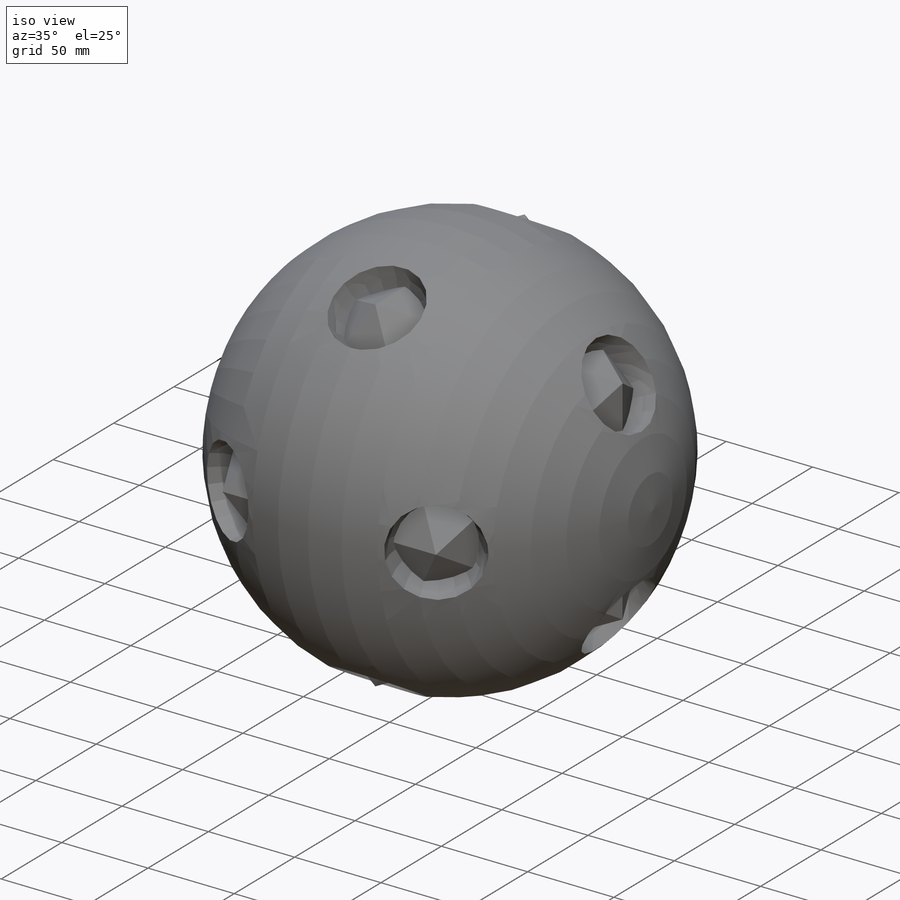
[diagram: iso view]
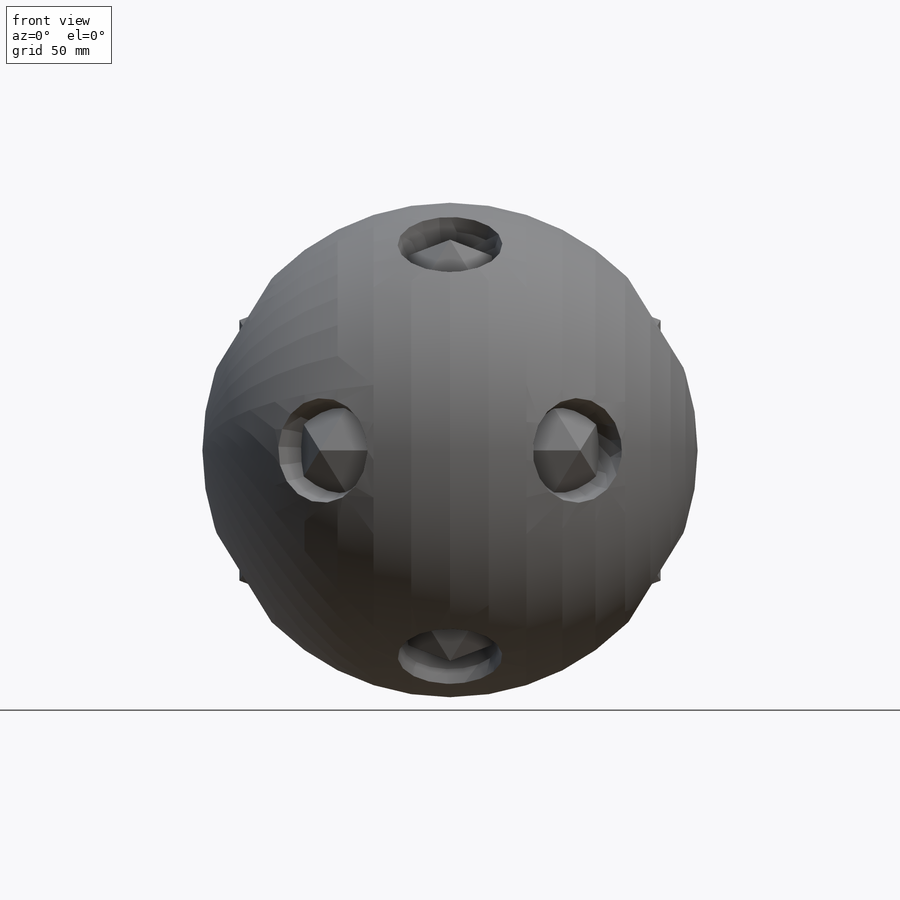
[diagram: front view]
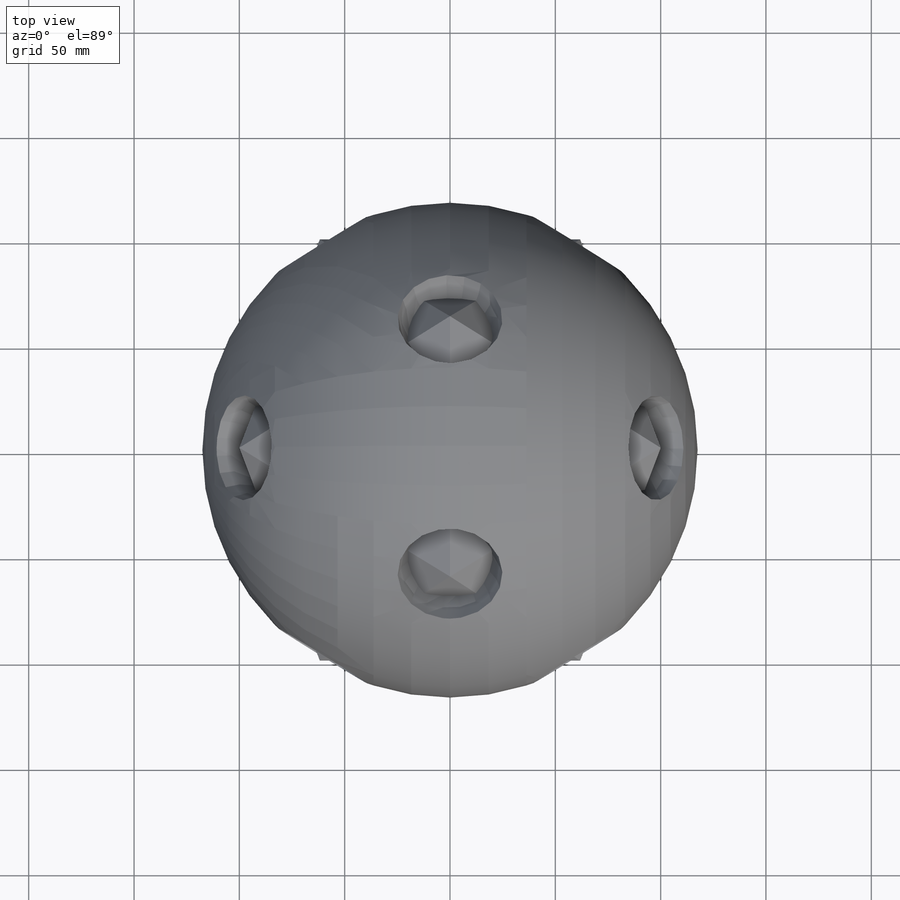
[diagram: top view]
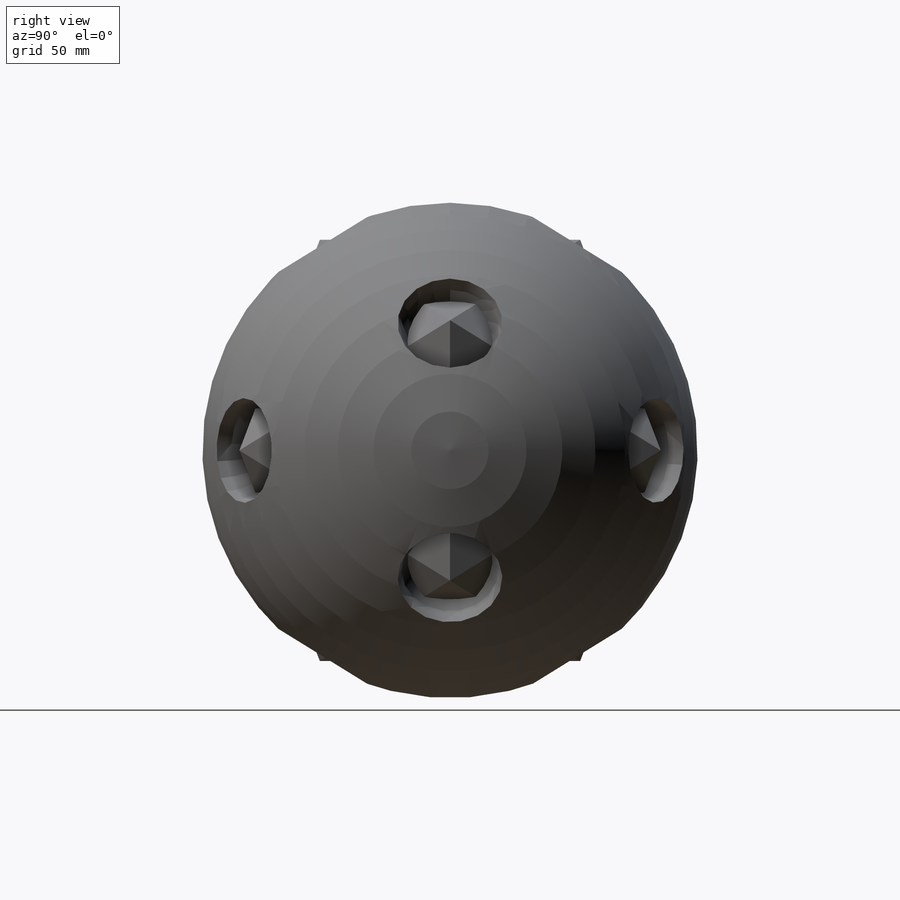
[diagram: right view]
SOLIDWORKS PART (.sldprt)
format: sldprt  version: not decoded by parser v0  size: 428,544 bytes
history: native  units: mm
features: sketch x11, mirror x9, plane x4, revolve x4, cut_extrude x3, pattern_circular x2, material x1, extrude x1, sweep x1, cut_revolve x1 (+8 scaffold rows collapsed)
feature tree (45):
  scaffold x8  (default folders/planes/origin — collapsed)
  material  "Material <nicht festgelegt>"
  plane  "Vorne"
  plane  "Oben"
  plane  "Rechts"
  sketch  "Skizze1"  dims[D1=200.0mm]
  extrude  "Linear austragen1"  Depth=200mm
  sketch  "Skizze2"
  sketch  "Skizze3"
  sketch  "Skizze6"
  sketch  "Skizze4"
  cut_extrude  "Schnitt-Linear austragen1"  [1 undecoded]
  mirror  "Spiegeln1"
  mirror  "Spiegeln2"
  sketch  "Skizze7"
  cut_extrude  "Schnitt-Linear austragen2"  [1 undecoded]
  mirror  "Spiegeln3"
  mirror  "Spiegeln4"
  sketch  "Skizze8"
  cut_extrude  "Schnitt-Linear austragen3"  [1 undecoded]
  mirror  "Spiegeln5"
  mirror  "Spiegeln6"
  sketch  "Skizze9"
  sketch  "3D-Skizze1"
  sweep  "Schnitt-Austragung1"
  mirror  "Spiegeln7"
  mirror  "Spiegeln8"
  mirror  "Spiegeln9"
  sketch  "Skizze10"
  revolve  "Rotation1"  Angle=360deg
  revolve  "3D-Skizze5"  [1 undecoded]
  plane  "Ebene8"
  sketch  "Skizze17"  dims[D1=50.0mm]
  cut_revolve  "Schnitt-Rotation5"  Angle=360deg
  revolve  "3D-Skizze6"  [1 undecoded]
  pattern_circular  "Kreismuster10"  Count=5 Angle=360deg
  revolve  "3D-Skizze7"  [1 undecoded]
  pattern_circular  "Kreismuster11"  Count=5 Angle=360deg
decode coverage: 7 of 32 modeling features carry decoded parameters
note: 6 parameter values undecoded
summary: no parameter record found for 6 features
note: suppression state not decoded; provenance and decode notes live in map.json
